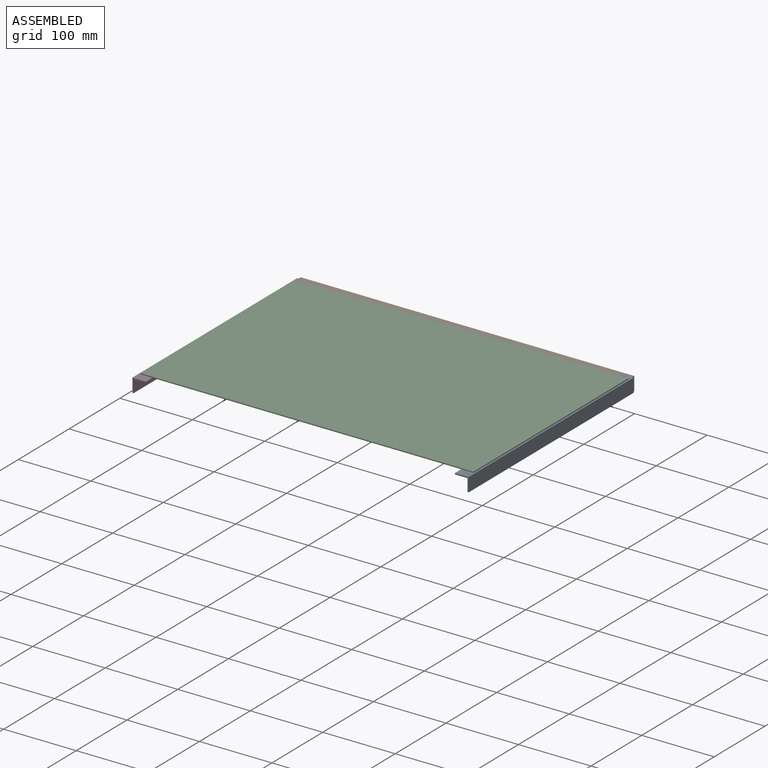
[diagram: assembled view]
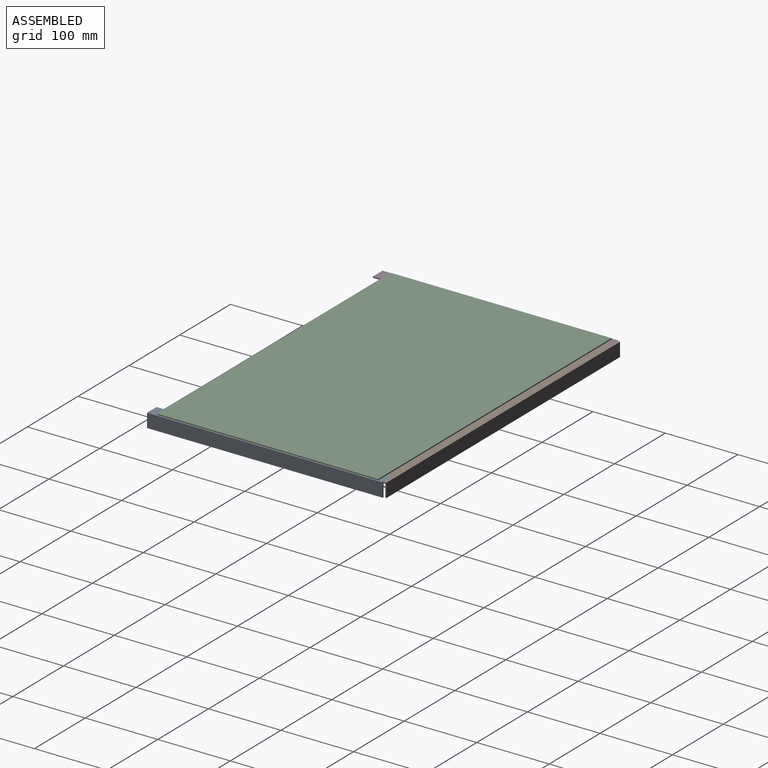
[diagram: assembled view, second angle]
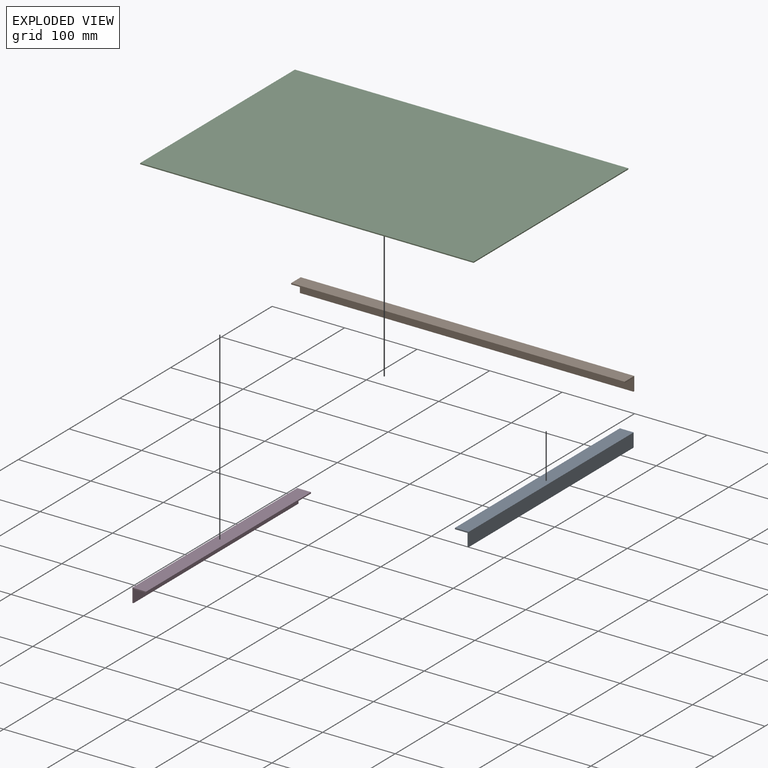
[diagram: exploded view]
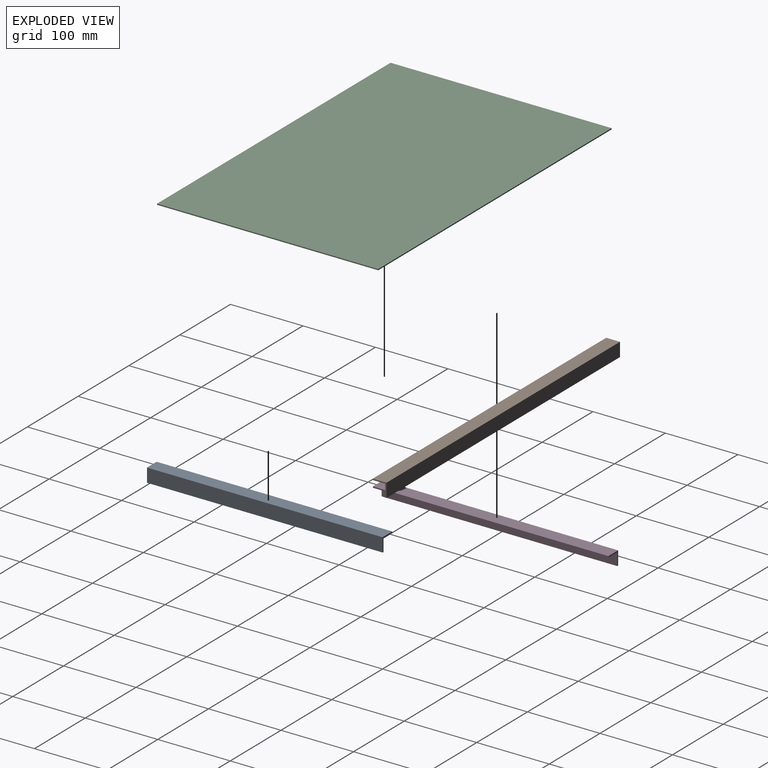
[diagram: exploded view, second angle]
ASSEMBLY  parts=4 mates=3
PART A: 8 faces, bbox 19x325x19 mm
  f0: plane 19x19mm, normal (0,-1,0), area 61.7mm2, adj f2,f3,f4,f5,f6,f7
  f1: plane 19x19mm, normal (0,1,0), area 61.7mm2, adj f2,f3,f4,f5,f6,f7
  f2: plane 325x19mm, normal (0,0,-1), area 6175mm2, adj f0,f1,f3,f5
  f3: plane 325x1.7mm, normal (1,0,0), area 552.5mm2, adj f0,f1,f2,f6
  f4: plane 325x1.7mm, normal (0,0,1), area 552.5mm2, adj f0,f1,f5,f7
  f5: plane 325x19mm, normal (-1,0,0), area 6175mm2, adj f0,f1,f2,f4
  f6: plane 325x17.3mm, normal (0,0,1), area 5622.5mm2, adj f0,f1,f3,f7
  f7: plane 325x17.3mm, normal (1,0,0), area 5622.5mm2, adj f0,f1,f4,f6
PART B: 8 faces, bbox 19x460x19 mm
  f0: plane 460x1.7mm, normal (0,0,1), area 782mm2, adj f1,f4,f5,f6
  f1: plane 460x19mm, normal (-1,0,0), area 8740mm2, adj f0,f2,f4,f5
  f2: plane 460x19mm, normal (0,0,-1), area 8740mm2, adj f1,f3,f4,f5
  f3: plane 460x1.7mm, normal (1,0,0), area 782mm2, adj f2,f4,f5,f7
  f4: plane 19x19mm, normal (0,-1,0), area 61.7mm2, adj f0,f1,f2,f3,f6,f7
  f5: plane 19x19mm, normal (0,1,0), area 61.7mm2, adj f0,f1,f2,f3,f6,f7
  f6: plane 460x17.3mm, normal (1,0,0), area 7958mm2, adj f0,f4,f5,f7
  f7: plane 460x17.3mm, normal (0,0,1), area 7958mm2, adj f3,f4,f5,f6
PART C: 6 faces, bbox 460x305x1.5 mm
  f0: plane 460x1.5mm, normal (0,-1,0), area 690mm2, adj f1,f3,f4,f5
  f1: plane 305x1.5mm, normal (1,0,0), area 457.5mm2, adj f0,f2,f4,f5
  f2: plane 460x1.5mm, normal (0,1,0), area 690mm2, adj f1,f3,f4,f5
  f3: plane 305x1.5mm, normal (-1,0,0), area 457.5mm2, adj f0,f2,f4,f5
  f4: plane 460x305mm, normal (0,0,1), area 140300mm2, adj f0,f1,f2,f3
  f5: plane 460x305mm, normal (0,0,-1), area 140300mm2, adj f0,f1,f2,f3
PART D: 8 faces, bbox 19x325x19 mm
  f0: plane 19x19mm, normal (0,-1,0), area 61.7mm2, adj f2,f3,f4,f5,f6,f7
  f1: plane 19x19mm, normal (0,1,0), area 61.7mm2, adj f2,f3,f4,f5,f6,f7
  f2: plane 325x19mm, normal (0,0,-1), area 6175mm2, adj f0,f1,f3,f5
  f3: plane 325x1.7mm, normal (-1,0,0), area 552.5mm2, adj f0,f1,f2,f6
  f4: plane 325x1.7mm, normal (0,0,1), area 552.5mm2, adj f0,f1,f5,f7
  f5: plane 325x19mm, normal (1,0,0), area 6175mm2, adj f0,f1,f2,f4
  f6: plane 325x17.3mm, normal (0,0,1), area 5622.5mm2, adj f0,f1,f3,f7
  f7: plane 325x17.3mm, normal (-1,0,0), area 5622.5mm2, adj f0,f1,f4,f6
PLACE A rot(axis=(0,1,0),180deg) t=(90.33,7.54,66.89)mm
PLACE B rot(axis=(-0.71,0.71,0),180deg) t=(-132.17,203.53,66.89)mm
PLACE C rot(axis=(-0.07,-0.92,-0.38),0deg) t=(-132.17,10.04,77.14)mm
PLACE D rot(axis=(0,1,0),180deg) t=(-354.67,7.54,66.89)mm
MATE fastened A.f2 <-> C.f5  axis (0,0,1) through (90.33,7.54,76.39)mm
MATE fastened B.f2 <-> C.f5  axis (0,0,1) through (-132.17,164.54,76.39)mm
MATE fastened D.f2 <-> C.f5  axis (0,0,1) through (-354.67,7.54,76.39)mm
